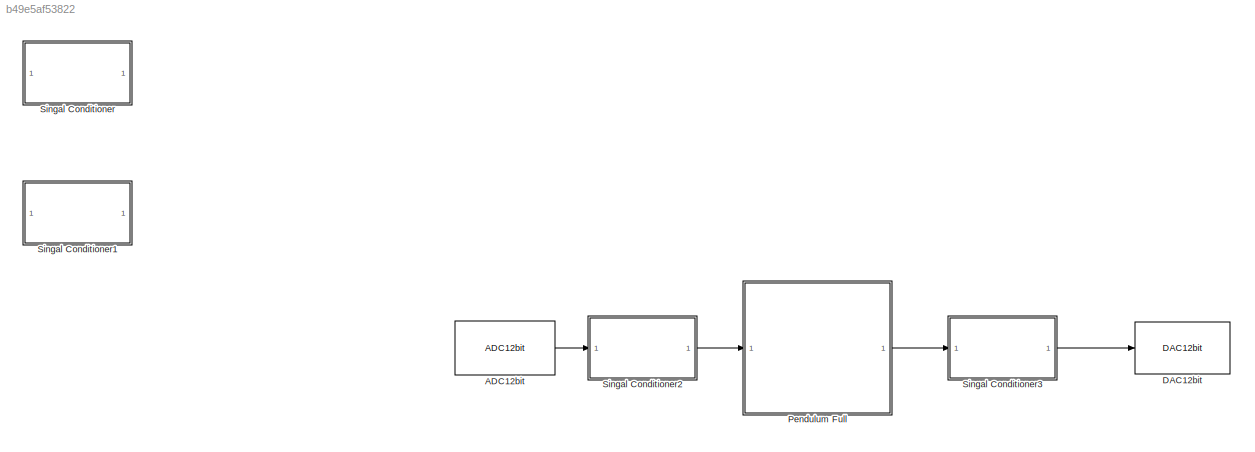
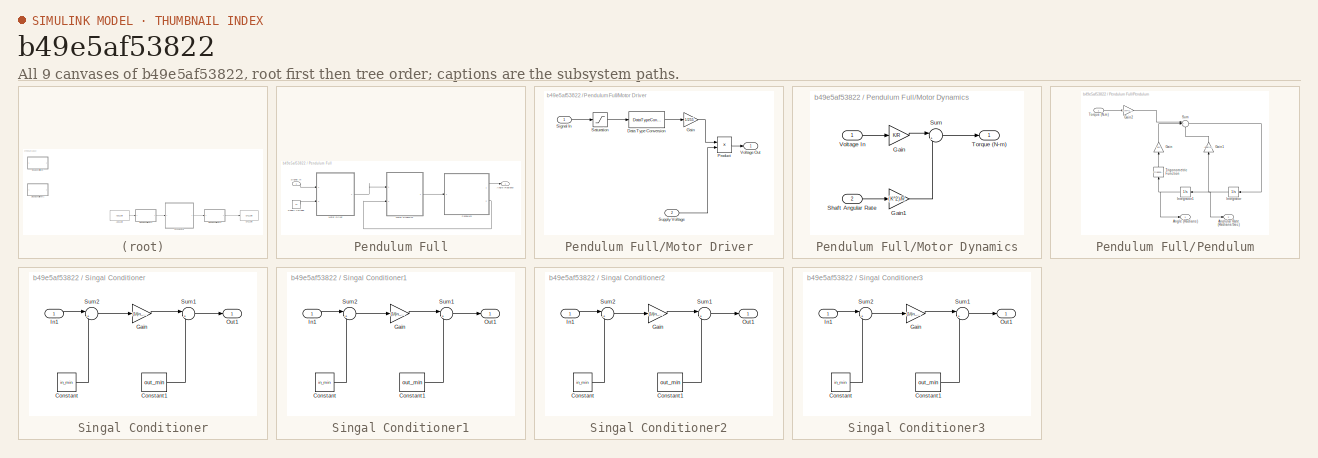
[diagram: thumbnail index - all 9 canvases of the model, root first then tree order]
MODEL slx_b49e5af53822
KIND model
CONFIG AbsTol = 1e-8
CONFIG EnableMultiTasking = on
CONFIG FixedStep = Ts
CONFIG MaxStep = auto
CONFIG MinStep = auto
CONFIG RelTol = 1e-8
CONFIG SampleTimeConstraint = Unconstrained
CONFIG Solver = ode8
CONFIG SolverName = ode8
CONFIG StartTime = 0.0
CONFIG StopTime = 20
BLOCK [Reference] ADC12bit  REF=EEE481Arduino/ADC12bit
  Ports = [0, 1]
  SourceBlock = EEE481Arduino/ADC12bit
BLOCK [Reference] DAC12bit  REF=EEE481Arduino/DAC12bit
  Ports = [1]
  SourceBlock = EEE481Arduino/DAC12bit
BLOCK [SubSystem] Pendulum Full
  Ports = [1, 1]
  RequestExecContextInheritance = off
  Variant = off
BLOCK [Outport] Pendulum Full/Angle (Radians)
  IconDisplay = Port number
  InitialOutput = 0
  OutputWhenDisabled = reset
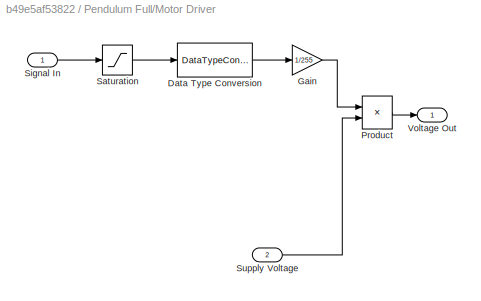
BLOCK [SubSystem] Pendulum Full/Motor Driver
  Ports = [2, 1]
  RequestExecContextInheritance = off
  Variant = off
BLOCK [DataTypeConversion] Pendulum Full/Motor Driver/Data Type Conversion
  OutDataTypeStr = int16
  RndMeth = Floor
  SaturateOnIntegerOverflow = off
BLOCK [Gain] Pendulum Full/Motor Driver/Gain
  Gain = 1/255
  OutDataTypeStr = Inherit: Inherit via internal rule
  ParamDataTypeStr = Inherit: Inherit via internal rule
  SaturateOnIntegerOverflow = off
BLOCK [Product] Pendulum Full/Motor Driver/Product
  InputSameDT = off
  OutDataTypeStr = Inherit: Inherit via internal rule
  Ports = [2, 1]
  RndMeth = Floor
  SaturateOnIntegerOverflow = off
BLOCK [Saturate] Pendulum Full/Motor Driver/Saturation
  InputPortMap = u0
  LowerLimit = -255
  Ports = [1, 1]
  UpperLimit = 255
BLOCK [Inport] Pendulum Full/Motor Driver/Signal In
  IconDisplay = Port number
BLOCK [Inport] Pendulum Full/Motor Driver/Supply Voltage
  IconDisplay = Port number
  Port = 2
BLOCK [Outport] Pendulum Full/Motor Driver/Voltage Out
  IconDisplay = Port number
BLOCK [SubSystem] Pendulum Full/Motor Dynamics
  Ports = [2, 1]
  RequestExecContextInheritance = off
  Variant = off
BLOCK [Gain] Pendulum Full/Motor Dynamics/Gain
  Gain = K/R
  OutDataTypeStr = Inherit: Inherit via internal rule
  ParamDataTypeStr = Inherit: Inherit via internal rule
  SaturateOnIntegerOverflow = off
BLOCK [Gain] Pendulum Full/Motor Dynamics/Gain1
  Gain = (K^2)/R
  OutDataTypeStr = Inherit: Inherit via internal rule
  ParamDataTypeStr = Inherit: Inherit via internal rule
  SaturateOnIntegerOverflow = off
BLOCK [Inport] Pendulum Full/Motor Dynamics/Shaft Angular Rate
  IconDisplay = Port number
  Port = 2
BLOCK [Sum] Pendulum Full/Motor Dynamics/Sum
  IconShape = round
  InputSameDT = off
  Inputs = |+-
  OutDataTypeStr = Inherit: Inherit via internal rule
  Ports = [2, 1]
  SaturateOnIntegerOverflow = off
BLOCK [Outport] Pendulum Full/Motor Dynamics/Torque (N-m)
  IconDisplay = Port number
BLOCK [Inport] Pendulum Full/Motor Dynamics/Voltage In
  IconDisplay = Port number
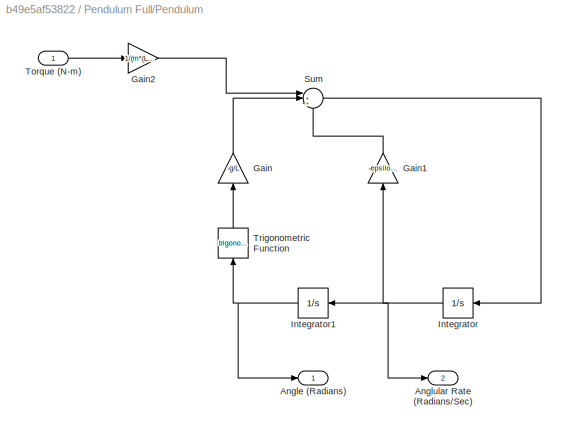
BLOCK [SubSystem] Pendulum Full/Pendulum
  Ports = [1, 2]
  RequestExecContextInheritance = off
  Variant = off
BLOCK [Outport] Pendulum Full/Pendulum/Angle (Radians)
  IconDisplay = Port number
BLOCK [Outport] Pendulum Full/Pendulum/Anglular Rate (Radians//Sec)
  IconDisplay = Port number
  Port = 2
BLOCK [Gain] Pendulum Full/Pendulum/Gain
  Gain = -g/L
  OutDataTypeStr = Inherit: Inherit via internal rule
  ParamDataTypeStr = Inherit: Inherit via internal rule
  SaturateOnIntegerOverflow = off
BLOCK [Gain] Pendulum Full/Pendulum/Gain1
  Gain = -epsilon/(m*(L^2))
  OutDataTypeStr = Inherit: Inherit via internal rule
  ParamDataTypeStr = Inherit: Inherit via internal rule
  SaturateOnIntegerOverflow = off
BLOCK [Gain] Pendulum Full/Pendulum/Gain2
  Gain = 1/(m*(L^2))
  OutDataTypeStr = Inherit: Inherit via internal rule
  ParamDataTypeStr = Inherit: Inherit via internal rule
  SaturateOnIntegerOverflow = off
BLOCK [Integrator] Pendulum Full/Pendulum/Integrator
  InitialCondition = theta_dot
  Ports = [1, 1]
BLOCK [Integrator] Pendulum Full/Pendulum/Integrator1
  InitialCondition = theta
  Ports = [1, 1]
BLOCK [Sum] Pendulum Full/Pendulum/Sum
  IconShape = round
  InputSameDT = off
  Inputs = |+++
  OutDataTypeStr = Inherit: Inherit via internal rule
  Ports = [3, 1]
  SaturateOnIntegerOverflow = off
BLOCK [Inport] Pendulum Full/Pendulum/Torque (N-m) 
  IconDisplay = Port number
BLOCK [Trigonometry] Pendulum Full/Pendulum/Trigonometric Function
  Ports = [1, 1]
BLOCK [Inport] Pendulum Full/Signal In
  IconDisplay = Port number
BLOCK [Constant] Pendulum Full/Supply Voltage
  Value = 12
BLOCK [SubSystem] Singal Conditioner
  Ports = [1, 1]
  RequestExecContextInheritance = off
  Variant = off
BLOCK [Constant] Singal Conditioner/Constant
  Value = in_min
BLOCK [Constant] Singal Conditioner/Constant1
  Value = out_min
BLOCK [Gain] Singal Conditioner/Gain
  Gain = (1/(in_max-in_min))*(out_max-out_min)
  OutDataTypeStr = Inherit: Inherit via internal rule
  ParamDataTypeStr = Inherit: Inherit via internal rule
  SaturateOnIntegerOverflow = off
BLOCK [Inport] Singal Conditioner/In1
  IconDisplay = Port number
BLOCK [Outport] Singal Conditioner/Out1
  IconDisplay = Port number
BLOCK [Sum] Singal Conditioner/Sum1
  IconShape = round
  InputSameDT = off
  Inputs = |++
  OutDataTypeStr = Inherit: Inherit via internal rule
  Ports = [2, 1]
  SaturateOnIntegerOverflow = off
BLOCK [Sum] Singal Conditioner/Sum2
  IconShape = round
  InputSameDT = off
  Inputs = |+-
  OutDataTypeStr = Inherit: Inherit via internal rule
  Ports = [2, 1]
  SaturateOnIntegerOverflow = off
BLOCK [SubSystem] Singal Conditioner1
  Ports = [1, 1]
  RequestExecContextInheritance = off
  Variant = off
BLOCK [Constant] Singal Conditioner1/Constant
  Value = in_min
BLOCK [Constant] Singal Conditioner1/Constant1
  Value = out_min
BLOCK [Gain] Singal Conditioner1/Gain
  Gain = (1/(in_max-in_min))*(out_max-out_min)
  OutDataTypeStr = Inherit: Inherit via internal rule
  ParamDataTypeStr = Inherit: Inherit via internal rule
  SaturateOnIntegerOverflow = off
BLOCK [Inport] Singal Conditioner1/In1
  IconDisplay = Port number
BLOCK [Outport] Singal Conditioner1/Out1
  IconDisplay = Port number
BLOCK [Sum] Singal Conditioner1/Sum1
  IconShape = round
  InputSameDT = off
  Inputs = |++
  OutDataTypeStr = Inherit: Inherit via internal rule
  Ports = [2, 1]
  SaturateOnIntegerOverflow = off
BLOCK [Sum] Singal Conditioner1/Sum2
  IconShape = round
  InputSameDT = off
  Inputs = |+-
  OutDataTypeStr = Inherit: Inherit via internal rule
  Ports = [2, 1]
  SaturateOnIntegerOverflow = off
BLOCK [SubSystem] Singal Conditioner2
  Ports = [1, 1]
  RequestExecContextInheritance = off
  Variant = off
BLOCK [Constant] Singal Conditioner2/Constant
  Value = in_min
BLOCK [Constant] Singal Conditioner2/Constant1
  Value = out_min
BLOCK [Gain] Singal Conditioner2/Gain
  Gain = (1/(in_max-in_min))*(out_max-out_min)
  OutDataTypeStr = Inherit: Inherit via internal rule
  ParamDataTypeStr = Inherit: Inherit via internal rule
  SaturateOnIntegerOverflow = off
BLOCK [Inport] Singal Conditioner2/In1
  IconDisplay = Port number
BLOCK [Outport] Singal Conditioner2/Out1
  IconDisplay = Port number
BLOCK [Sum] Singal Conditioner2/Sum1
  IconShape = round
  InputSameDT = off
  Inputs = |++
  OutDataTypeStr = Inherit: Inherit via internal rule
  Ports = [2, 1]
  SaturateOnIntegerOverflow = off
BLOCK [Sum] Singal Conditioner2/Sum2
  IconShape = round
  InputSameDT = off
  Inputs = |+-
  OutDataTypeStr = Inherit: Inherit via internal rule
  Ports = [2, 1]
  SaturateOnIntegerOverflow = off
BLOCK [SubSystem] Singal Conditioner3
  Ports = [1, 1]
  RequestExecContextInheritance = off
  Variant = off
BLOCK [Constant] Singal Conditioner3/Constant
  Value = in_min
BLOCK [Constant] Singal Conditioner3/Constant1
  Value = out_min
BLOCK [Gain] Singal Conditioner3/Gain
  Gain = (1/(in_max-in_min))*(out_max-out_min)
  OutDataTypeStr = Inherit: Inherit via internal rule
  ParamDataTypeStr = Inherit: Inherit via internal rule
  SaturateOnIntegerOverflow = off
BLOCK [Inport] Singal Conditioner3/In1
  IconDisplay = Port number
BLOCK [Outport] Singal Conditioner3/Out1
  IconDisplay = Port number
BLOCK [Sum] Singal Conditioner3/Sum1
  IconShape = round
  InputSameDT = off
  Inputs = |++
  OutDataTypeStr = Inherit: Inherit via internal rule
  Ports = [2, 1]
  SaturateOnIntegerOverflow = off
BLOCK [Sum] Singal Conditioner3/Sum2
  IconShape = round
  InputSameDT = off
  Inputs = |+-
  OutDataTypeStr = Inherit: Inherit via internal rule
  Ports = [2, 1]
  SaturateOnIntegerOverflow = off
LINE ADC12bit:1 -> Singal Conditioner2:1
LINE Pendulum Full/Motor Driver/Data Type Conversion:1 -> Pendulum Full/Motor Driver/Gain:1
LINE Pendulum Full/Motor Driver/Gain:1 -> Pendulum Full/Motor Driver/Product:1
LINE Pendulum Full/Motor Driver/Product:1 -> Pendulum Full/Motor Driver/Voltage Out:1
LINE Pendulum Full/Motor Driver/Saturation:1 -> Pendulum Full/Motor Driver/Data Type Conversion:1
LINE Pendulum Full/Motor Driver/Signal In:1 -> Pendulum Full/Motor Driver/Saturation:1
LINE Pendulum Full/Motor Driver/Supply Voltage:1 -> Pendulum Full/Motor Driver/Product:2
LINE Pendulum Full/Motor Driver:1 -> Pendulum Full/Motor Dynamics:1
LINE Pendulum Full/Motor Dynamics/Gain1:1 -> Pendulum Full/Motor Dynamics/Sum:2
LINE Pendulum Full/Motor Dynamics/Gain:1 -> Pendulum Full/Motor Dynamics/Sum:1
LINE Pendulum Full/Motor Dynamics/Shaft Angular Rate:1 -> Pendulum Full/Motor Dynamics/Gain1:1
LINE Pendulum Full/Motor Dynamics/Sum:1 -> Pendulum Full/Motor Dynamics/Torque (N-m):1
LINE Pendulum Full/Motor Dynamics/Voltage In:1 -> Pendulum Full/Motor Dynamics/Gain:1
LINE Pendulum Full/Motor Dynamics:1 -> Pendulum Full/Pendulum:1
LINE Pendulum Full/Pendulum/Gain1:1 -> Pendulum Full/Pendulum/Sum:3
LINE Pendulum Full/Pendulum/Gain2:1 -> Pendulum Full/Pendulum/Sum:1
LINE Pendulum Full/Pendulum/Gain:1 -> Pendulum Full/Pendulum/Sum:2
NET Pendulum Full/Pendulum/Integrator1:1 -> Pendulum Full/Pendulum/Angle (Radians):1, Pendulum Full/Pendulum/Trigonometric Function:1
NET Pendulum Full/Pendulum/Integrator:1 -> Pendulum Full/Pendulum/Anglular Rate (Radians//Sec):1, Pendulum Full/Pendulum/Gain1:1, Pendulum Full/Pendulum/Integrator1:1
LINE Pendulum Full/Pendulum/Sum:1 -> Pendulum Full/Pendulum/Integrator:1
LINE Pendulum Full/Pendulum/Torque (N-m) :1 -> Pendulum Full/Pendulum/Gain2:1
LINE Pendulum Full/Pendulum/Trigonometric Function:1 -> Pendulum Full/Pendulum/Gain:1
LINE Pendulum Full/Pendulum:1 -> Pendulum Full/Angle (Radians):1
LINE Pendulum Full/Pendulum:2 -> Pendulum Full/Motor Dynamics:2
LINE Pendulum Full/Signal In:1 -> Pendulum Full/Motor Driver:1
LINE Pendulum Full/Supply Voltage:1 -> Pendulum Full/Motor Driver:2
LINE Pendulum Full:1 -> Singal Conditioner3:1
LINE Singal Conditioner/Constant1:1 -> Singal Conditioner/Sum1:2
LINE Singal Conditioner/Constant:1 -> Singal Conditioner/Sum2:2
LINE Singal Conditioner/Gain:1 -> Singal Conditioner/Sum1:1
LINE Singal Conditioner/In1:1 -> Singal Conditioner/Sum2:1
LINE Singal Conditioner/Sum1:1 -> Singal Conditioner/Out1:1
LINE Singal Conditioner/Sum2:1 -> Singal Conditioner/Gain:1
LINE Singal Conditioner1/Constant1:1 -> Singal Conditioner1/Sum1:2
LINE Singal Conditioner1/Constant:1 -> Singal Conditioner1/Sum2:2
LINE Singal Conditioner1/Gain:1 -> Singal Conditioner1/Sum1:1
LINE Singal Conditioner1/In1:1 -> Singal Conditioner1/Sum2:1
LINE Singal Conditioner1/Sum1:1 -> Singal Conditioner1/Out1:1
LINE Singal Conditioner1/Sum2:1 -> Singal Conditioner1/Gain:1
LINE Singal Conditioner2/Constant1:1 -> Singal Conditioner2/Sum1:2
LINE Singal Conditioner2/Constant:1 -> Singal Conditioner2/Sum2:2
LINE Singal Conditioner2/Gain:1 -> Singal Conditioner2/Sum1:1
LINE Singal Conditioner2/In1:1 -> Singal Conditioner2/Sum2:1
LINE Singal Conditioner2/Sum1:1 -> Singal Conditioner2/Out1:1
LINE Singal Conditioner2/Sum2:1 -> Singal Conditioner2/Gain:1
LINE Singal Conditioner2:1 -> Pendulum Full:1
LINE Singal Conditioner3/Constant1:1 -> Singal Conditioner3/Sum1:2
LINE Singal Conditioner3/Constant:1 -> Singal Conditioner3/Sum2:2
LINE Singal Conditioner3/Gain:1 -> Singal Conditioner3/Sum1:1
LINE Singal Conditioner3/In1:1 -> Singal Conditioner3/Sum2:1
LINE Singal Conditioner3/Sum1:1 -> Singal Conditioner3/Out1:1
LINE Singal Conditioner3/Sum2:1 -> Singal Conditioner3/Gain:1
LINE Singal Conditioner3:1 -> DAC12bit:1
note: NET lines group one-source signal fan-out (src -> all destinations, sorted); 1:1 wires keep LINE
